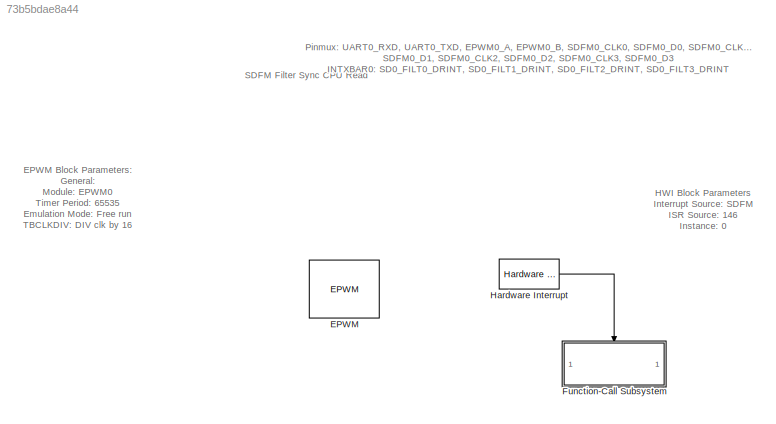
MODEL slx_73b5bdae8a44
KIND model
CONFIG AbsTol = auto
CONFIG EnableMultiTasking = off
CONFIG FixedStep = auto
CONFIG MaxStep = auto
CONFIG MinStep = auto
CONFIG RelTol = 1e-3
CONFIG SampleTimeConstraint = Unconstrained
CONFIG SolverName = FixedStepAuto
CONFIG StartTime = 0.0
CONFIG StopTime = 10.0
BLOCK [Reference] EPWM  REF=peripheral_library_blocks_am263x/EPWM
  SourceBlock = peripheral_library_blocks_am263x/EPWM
  SourceType = EPWM_AM263X
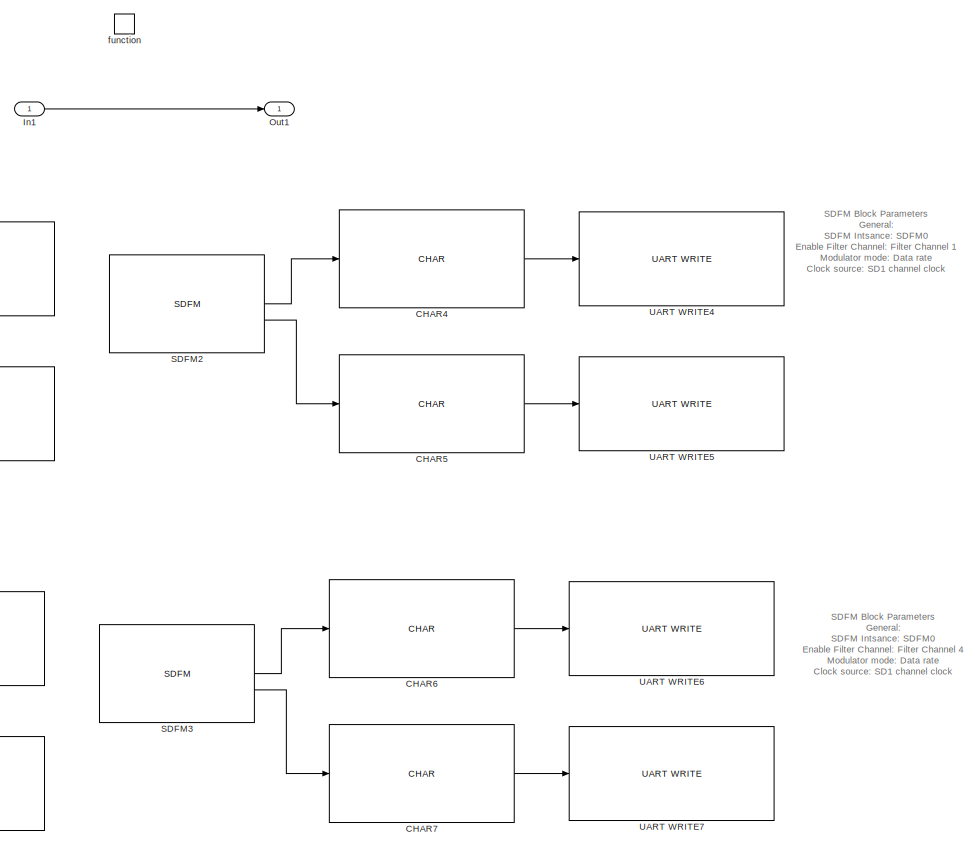
[diagram: Function-Call Subsystem - part 1/2, right side, full height]
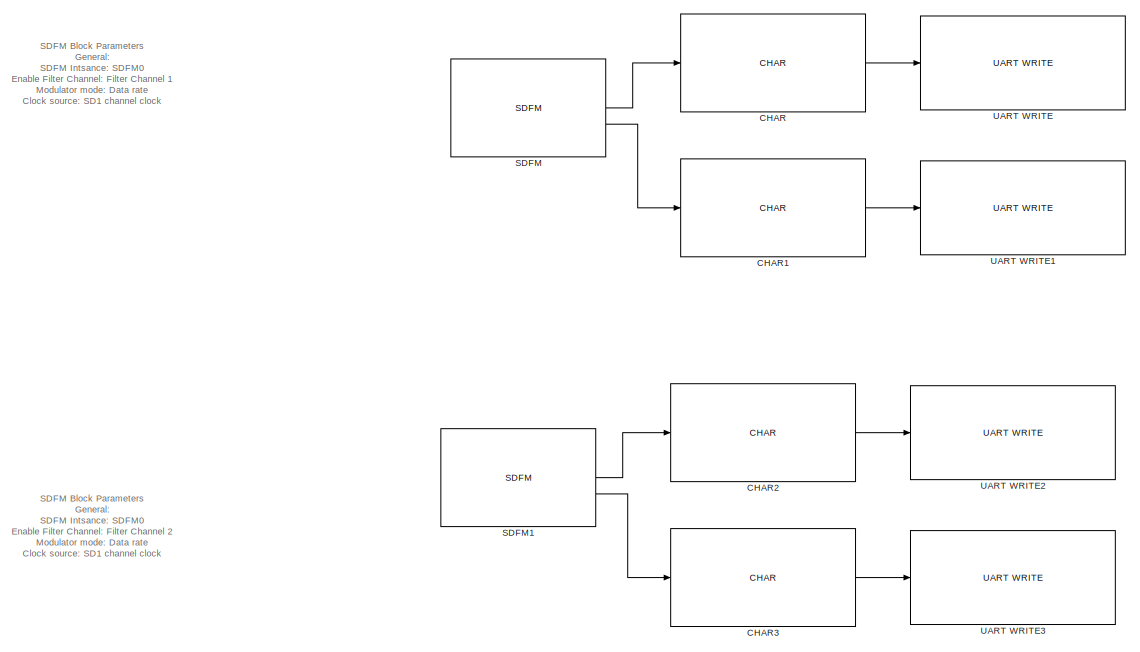
[diagram: Function-Call Subsystem - part 2/2, left side, full height]
BLOCK [SubSystem] Function-Call Subsystem
  TreatAsAtomicUnit = on
BLOCK [Reference] Function-Call Subsystem/CHAR  REF=peripheral_library_blocks_am263x/CHAR
  SourceBlock = peripheral_library_blocks_am263x/CHAR
  SourceType = CHAR
BLOCK [Reference] Function-Call Subsystem/CHAR1  REF=peripheral_library_blocks_am263x/CHAR
  SourceBlock = peripheral_library_blocks_am263x/CHAR
  SourceType = CHAR
BLOCK [Reference] Function-Call Subsystem/CHAR2  REF=peripheral_library_blocks_am263x/CHAR
  SourceBlock = peripheral_library_blocks_am263x/CHAR
  SourceType = CHAR
BLOCK [Reference] Function-Call Subsystem/CHAR3  REF=peripheral_library_blocks_am263x/CHAR
  SourceBlock = peripheral_library_blocks_am263x/CHAR
  SourceType = CHAR
BLOCK [Reference] Function-Call Subsystem/CHAR4  REF=peripheral_library_blocks_am263x/CHAR
  SourceBlock = peripheral_library_blocks_am263x/CHAR
  SourceType = CHAR
BLOCK [Reference] Function-Call Subsystem/CHAR5  REF=peripheral_library_blocks_am263x/CHAR
  SourceBlock = peripheral_library_blocks_am263x/CHAR
  SourceType = CHAR
BLOCK [Reference] Function-Call Subsystem/CHAR6  REF=peripheral_library_blocks_am263x/CHAR
  SourceBlock = peripheral_library_blocks_am263x/CHAR
  SourceType = CHAR
BLOCK [Reference] Function-Call Subsystem/CHAR7  REF=peripheral_library_blocks_am263x/CHAR
  SourceBlock = peripheral_library_blocks_am263x/CHAR
  SourceType = CHAR
BLOCK [Inport] Function-Call Subsystem/In1
BLOCK [Outport] Function-Call Subsystem/Out1
BLOCK [Reference] Function-Call Subsystem/SDFM  REF=peripheral_library_blocks_am263x/SDFM
  SourceBlock = peripheral_library_blocks_am263x/SDFM
  SourceType = SDFM_AM263X
BLOCK [Reference] Function-Call Subsystem/SDFM1  REF=peripheral_library_blocks_am263x/SDFM
  SourceBlock = peripheral_library_blocks_am263x/SDFM
  SourceType = SDFM_AM263X
BLOCK [Reference] Function-Call Subsystem/SDFM2  REF=peripheral_library_blocks_am263x/SDFM
  SourceBlock = peripheral_library_blocks_am263x/SDFM
  SourceType = SDFM_AM263X
BLOCK [Reference] Function-Call Subsystem/SDFM3  REF=peripheral_library_blocks_am263x/SDFM
  SourceBlock = peripheral_library_blocks_am263x/SDFM
  SourceType = SDFM_AM263X
BLOCK [Reference] Function-Call Subsystem/UART WRITE  REF=peripheral_library_blocks_am263x/UART WRITE
  SourceBlock = peripheral_library_blocks_am263x/UART WRITE
  SourceType = UART_WRITE_AM263X
BLOCK [Reference] Function-Call Subsystem/UART WRITE1  REF=peripheral_library_blocks_am263x/UART WRITE
  SourceBlock = peripheral_library_blocks_am263x/UART WRITE
  SourceType = UART_WRITE_AM263X
BLOCK [Reference] Function-Call Subsystem/UART WRITE2  REF=peripheral_library_blocks_am263x/UART WRITE
  SourceBlock = peripheral_library_blocks_am263x/UART WRITE
  SourceType = UART_WRITE_AM263X
BLOCK [Reference] Function-Call Subsystem/UART WRITE3  REF=peripheral_library_blocks_am263x/UART WRITE
  SourceBlock = peripheral_library_blocks_am263x/UART WRITE
  SourceType = UART_WRITE_AM263X
BLOCK [Reference] Function-Call Subsystem/UART WRITE4  REF=peripheral_library_blocks_am263x/UART WRITE
  SourceBlock = peripheral_library_blocks_am263x/UART WRITE
  SourceType = UART_WRITE_AM263X
BLOCK [Reference] Function-Call Subsystem/UART WRITE5  REF=peripheral_library_blocks_am263x/UART WRITE
  SourceBlock = peripheral_library_blocks_am263x/UART WRITE
  SourceType = UART_WRITE_AM263X
BLOCK [Reference] Function-Call Subsystem/UART WRITE6  REF=peripheral_library_blocks_am263x/UART WRITE
  SourceBlock = peripheral_library_blocks_am263x/UART WRITE
  SourceType = UART_WRITE_AM263X
BLOCK [Reference] Function-Call Subsystem/UART WRITE7  REF=peripheral_library_blocks_am263x/UART WRITE
  SourceBlock = peripheral_library_blocks_am263x/UART WRITE
  SourceType = UART_WRITE_AM263X
BLOCK [TriggerPort] Function-Call Subsystem/function
  StatesWhenEnabling = held
  TriggerType = function-call
  VariantControl = (inherit)
BLOCK [Reference] Hardware Interrupt  REF=HWI_lib/Hardware Interrupt
  SourceBlock = HWI_lib/Hardware Interrupt
  SourceProductName = Embedded Coder Support Package for AM263x - HWI Block
ANNOTATION (root): EPWM Block Parameters: General: Module: EPWM0 Timer Period: 65535 Emulation Mode: Free run TBCLKDIV: DIV clk by 16 HSCLKDIV: Div clk by 1 Counter Mode: Up count Counter Compare: CMPA Value: 32768 CMPB Value: 16384 Action Qualifier: EPWMXA CNTR Zero: Set output pins low EPWMXA CNTR CMPAU: Set output pins high EPWMXB CNTR Zero: Set output pins low EPWMXB when CMPBU: Set output pins high
ANNOTATION (root): Pinmux : UART0_RXD, UART0_TXD, EPWM0_A, EPWM0_B, SDFM0_CLK0, SDFM0_D0, SDFM0_CLK1, SDFM0_D1, SDFM0_CLK2, SDFM0_D2, SDFM0_CLK3, SDFM0_D3 INTXBAR0: SD0_FILT0_DRINT, SD0_FILT1_DRINT, SD0_FILT2_DRINT, SD0_FILT3_DRINT
ANNOTATION (root): SDFM Filter Sync CPU Read
ANNOTATION (root): HWI Block Parameters Interrupt Source : SDFM ISR Source : 146 Instance : 0
ANNOTATION Function-Call Subsystem: SDFM Block Parameters General: SDFM Intsance: SDFM0 Enable Filter Channel: Filter Channel 1 Modulator mode: Data rate Clock source: SD1 channel clock Data Filter: Filter Type: Digital Filter with Sinc3 structure DOSR: 256 Data representation: 16 bit 2s complement format Shift output: 10 Use PWM synchronization: True SDSYNC source: PWM1 SOCA Comparator: Filter Type: Digital Filter with Sinc3 struct...<+218ch>
ANNOTATION Function-Call Subsystem: SDFM Block Parameters General: SDFM Intsance: SDFM0 Enable Filter Channel: Filter Channel 2 Modulator mode: Data rate Clock source: SD1 channel clock Data Filter: Filter Type: Digital Filter with Sinc3 structure DOSR: 256 Data representation: 16 bit 2s complement format Shift output: 10 Use PWM synchronization: True SDSYNC source: PWM1 SOCA Comparator: Filter Type: Digital Filter with Sinc3 struct...<+218ch>
ANNOTATION Function-Call Subsystem: SDFM Block Parameters General: SDFM Intsance: SDFM0 Enable Filter Channel: Filter Channel 4 Modulator mode: Data rate Clock source: SD1 channel clock Data Filter: Filter Type: Digital Filter with Sinc3 structure DOSR: 256 Data representation: 16 bit 2s complement format Shift output: 10 Use PWM synchronization: True SDSYNC source: PWM1 SOCA Comparator: Filter Type: Digital Filter with Sinc3 struct...<+219ch>
ANNOTATION Function-Call Subsystem: SDFM Block Parameters General: SDFM Intsance: SDFM0 Enable Filter Channel: Filter Channel 1 Modulator mode: Data rate Clock source: SD1 channel clock Data Filter: Filter Type: Digital Filter with Sinc3 structure DOSR: 256 Data representation: 16 bit 2s complement format Shift output: 10 Use PWM synchronization: True SDSYNC source: PWM1 SOCA Comparator: Filter Type: Digital Filter with Sinc3 struct...<+218ch>
LINE Function-Call Subsystem/CHAR1:1 -> Function-Call Subsystem/UART WRITE1:1
LINE Function-Call Subsystem/CHAR2:1 -> Function-Call Subsystem/UART WRITE2:1
LINE Function-Call Subsystem/CHAR3:1 -> Function-Call Subsystem/UART WRITE3:1
LINE Function-Call Subsystem/CHAR4:1 -> Function-Call Subsystem/UART WRITE4:1
LINE Function-Call Subsystem/CHAR5:1 -> Function-Call Subsystem/UART WRITE5:1
LINE Function-Call Subsystem/CHAR6:1 -> Function-Call Subsystem/UART WRITE6:1
LINE Function-Call Subsystem/CHAR7:1 -> Function-Call Subsystem/UART WRITE7:1
LINE Function-Call Subsystem/CHAR:1 -> Function-Call Subsystem/UART WRITE:1
LINE Function-Call Subsystem/In1:1 -> Function-Call Subsystem/Out1:1
LINE Function-Call Subsystem/SDFM1:1 -> Function-Call Subsystem/CHAR2:1
LINE Function-Call Subsystem/SDFM1:2 -> Function-Call Subsystem/CHAR3:1
LINE Function-Call Subsystem/SDFM2:1 -> Function-Call Subsystem/CHAR4:1
LINE Function-Call Subsystem/SDFM2:2 -> Function-Call Subsystem/CHAR5:1
LINE Function-Call Subsystem/SDFM3:1 -> Function-Call Subsystem/CHAR6:1
LINE Function-Call Subsystem/SDFM3:2 -> Function-Call Subsystem/CHAR7:1
LINE Function-Call Subsystem/SDFM:1 -> Function-Call Subsystem/CHAR:1
LINE Function-Call Subsystem/SDFM:2 -> Function-Call Subsystem/CHAR1:1
LINE Hardware Interrupt:1 -> Function-Call Subsystem:trigger
